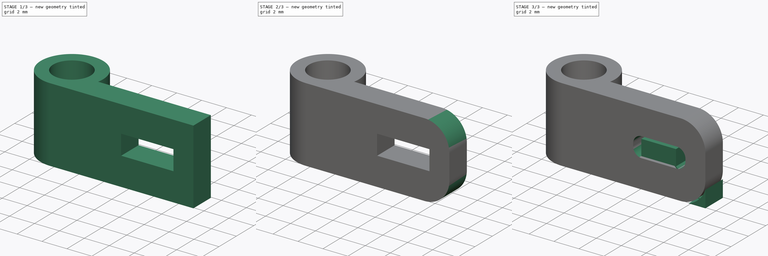
[diagram: build sequence overview — one tinted view per stage of 3, left to right]
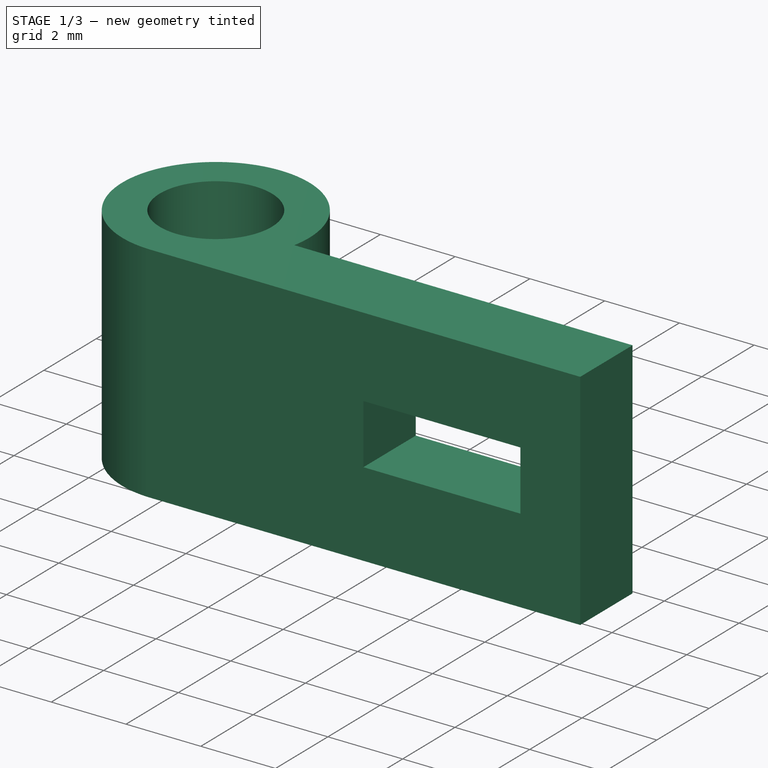
[diagram: stage 1 of 3 — iso view after this stage's code; geometry added in this stage tinted green]
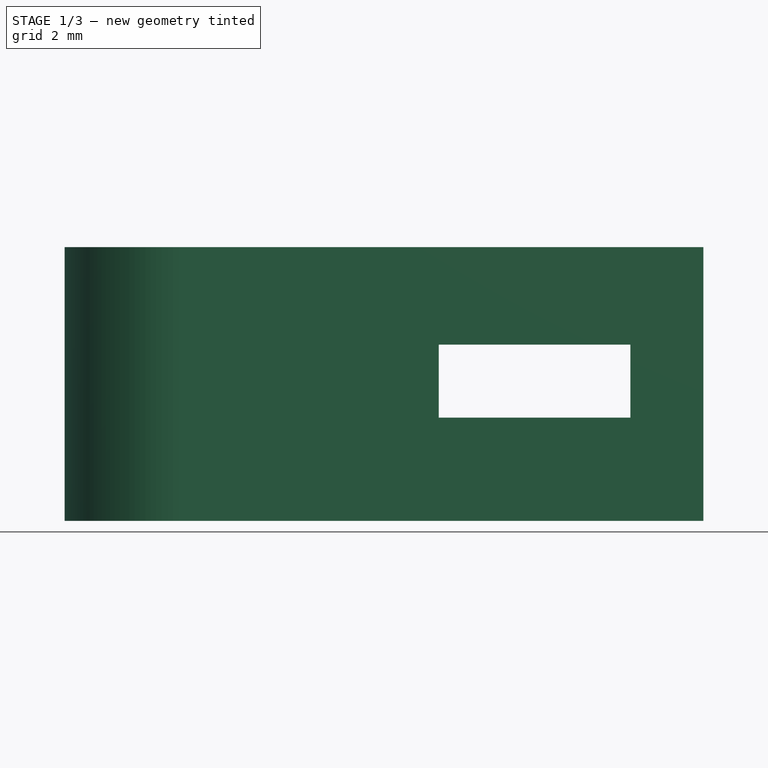
[diagram: stage 1 of 3 — front view after this stage's code; geometry added in this stage tinted green]
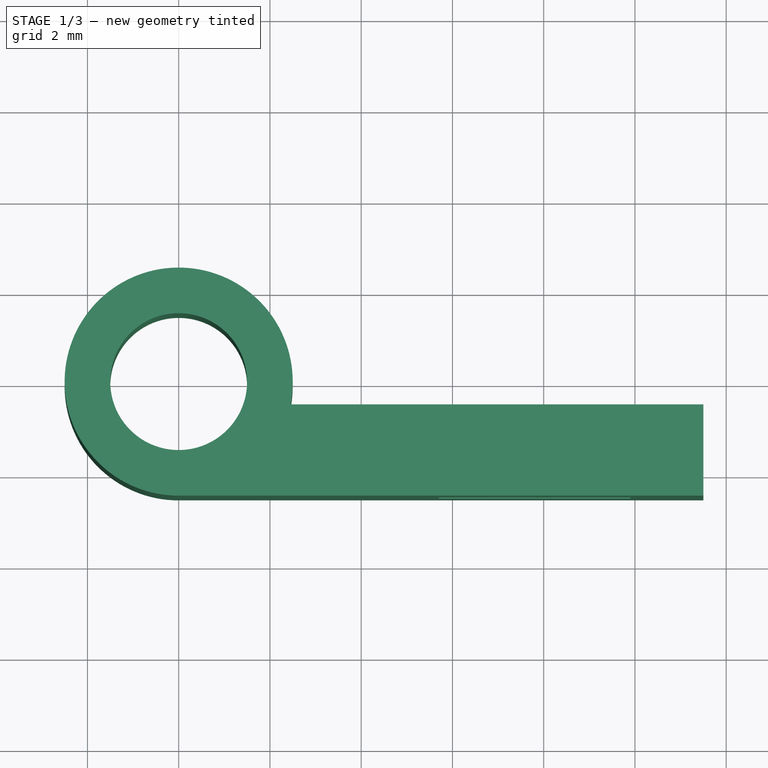
[diagram: stage 1 of 3 — top view after this stage's code; geometry added in this stage tinted green]
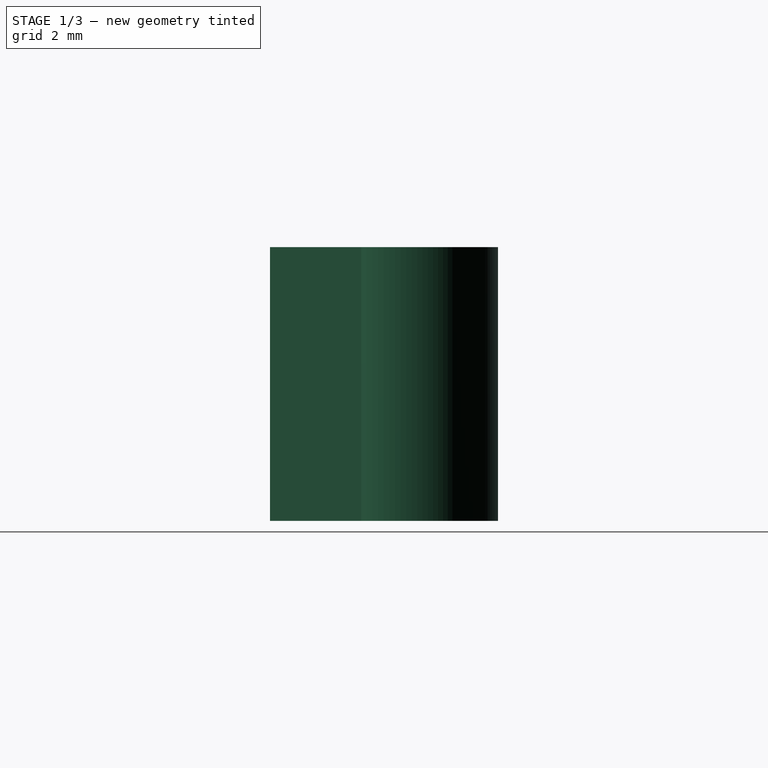
[diagram: stage 1 of 3 — right view after this stage's code; geometry added in this stage tinted green]
FCSTD DOCUMENT  (FreeCAD 0.19R24267 +99 (Git))
Label: 怪象摄像头固定tpu
License: All rights reserved
LicenseURL: http://en.wikipedia.org/wiki/All_rights_reserved
objects: Sketcher::SketchObject×3, PartDesign::Pad×2, PartDesign::Fillet×2, PartDesign::Pocket×1, PartDesign::Body×1
note: 14 computed .brp shape members not serialized (recipe doc carries the construction recipe); baked Part::Feature solids carry a one-line shape summary decoded from their .brp

FEATURE [Sketcher::SketchObject] Sketch
  FullyConstrained = false
  MapMode = 5
  Support = -> [XY_Plane]
  sketch-geometry (7):
    g0: ArcOfCircle CenterX=0 CenterY=0 CenterZ=0 NormalX=0 NormalY=0 NormalZ=1 AngleXU=0 Radius=2.5 StartAngle=6.08183 EndAngle=10.9956
    g1: Circle CenterX=0 CenterY=0 CenterZ=0 NormalX=0 NormalY=0 NormalZ=1 AngleXU=0 Radius=1.5
    g2: LineSegment StartX=-1.1e-15 StartY=-2.5 StartZ=0 EndX=11.5 EndY=-2.5 EndZ=0
    g3: LineSegment StartX=11.5 StartY=-2.5 StartZ=0 EndX=11.5 EndY=-0.5 EndZ=0
    g4: LineSegment StartX=11.5 StartY=-0.5 StartZ=0 EndX=2.44949 EndY=-0.5 EndZ=0
    g5: GeomPoint X=-2.5 Y=0 Z=0
    g6: GeomPoint X=-0.001984 Y=-1.5 Z=0
  constraints (17):
    c: Coincident(g0,g-1)
    c: Coincident(g1,g0)
    c: Diameter(g1) = 3
    c: Diameter(g0) = 5
    c: Coincident(g2,g3)
    c: Coincident(g3,g4)
    c: Horizontal(g2)
    c: Horizontal(g4)
    c: Vertical(g3)
    c: PointOnObject(g2,g-2)
    c: PointOnObject(g5,g0)
    c: PointOnObject(g5,g-1)
    c: Distance(g5,g3) = 14
    c: Coincident(g0,g4)
    c: Coincident(g0,g2)
    c: PointOnObject(g6,g1)
    c: Distance(g3) = 2
FEATURE [PartDesign::Pad] Pad
  Direction = (1,1,1)
  Length = 6
  Length2 = 100
  Profile = -> Sketch
  Type = 0
FEATURE [Sketcher::SketchObject] Sketch001
  ExternalGeometry = -> [Pad]
  FullyConstrained = false
  MapMode = 5
  Placement = pos=(0,-2.5,0) rot=(1,0,0;1.5708rad)
  Support = -> [Pad]
  sketch-geometry (4):
    g0: LineSegment StartX=5.7 StartY=3.86419 StartZ=0 EndX=9.9 EndY=3.86419 EndZ=0
    g1: LineSegment StartX=9.9 StartY=3.86419 StartZ=0 EndX=9.9 EndY=2.26419 EndZ=0
    g2: LineSegment StartX=9.9 StartY=2.26419 StartZ=0 EndX=5.7 EndY=2.26419 EndZ=0
    g3: LineSegment StartX=5.7 StartY=2.26419 StartZ=0 EndX=5.7 EndY=3.86419 EndZ=0
  constraints (11):
    c: Coincident(g0,g1)
    c: Coincident(g1,g2)
    c: Coincident(g2,g3)
    c: Coincident(g3,g0)
    c: Horizontal(g0)
    c: Horizontal(g2)
    c: Vertical(g1)
    c: Vertical(g3)
    c: Distance(g-3,g1) = 1.6
    c: Distance(g0,g0) = 4.2
    c: Distance(g1) = 1.6
FEATURE [PartDesign::Pocket] Pocket
  BaseFeature = -> Pad
  Length = 5
  Length2 = 100
  Profile = -> Sketch001
  Type = 0
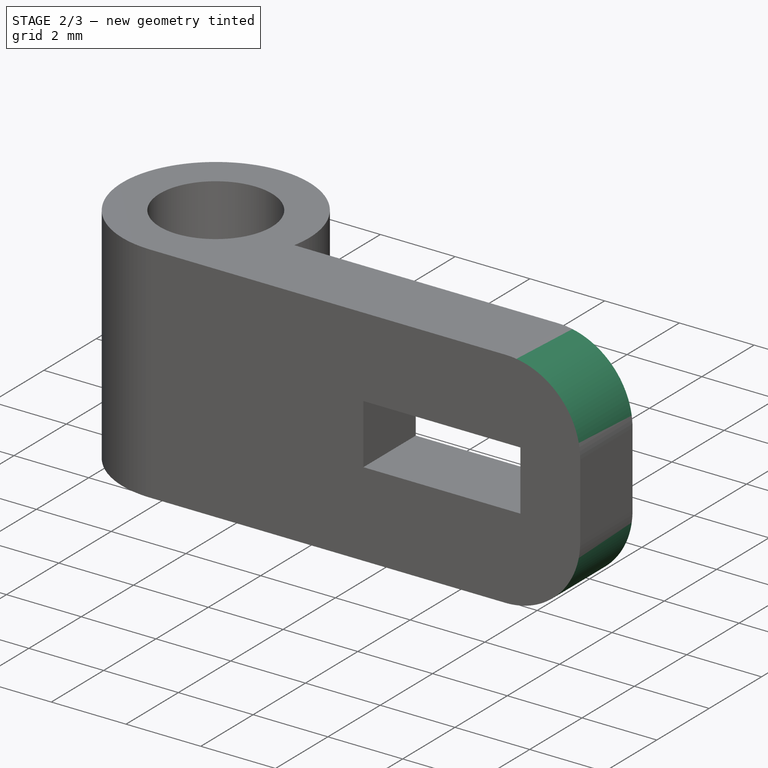
[diagram: stage 2 of 3 — iso view after this stage's code; geometry added in this stage tinted green]
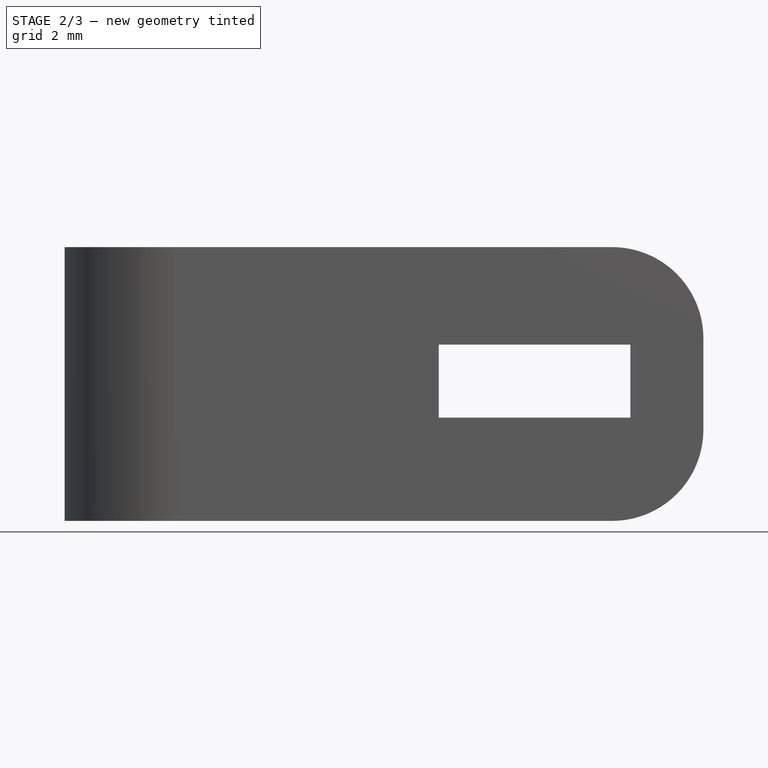
[diagram: stage 2 of 3 — front view after this stage's code; geometry added in this stage tinted green]
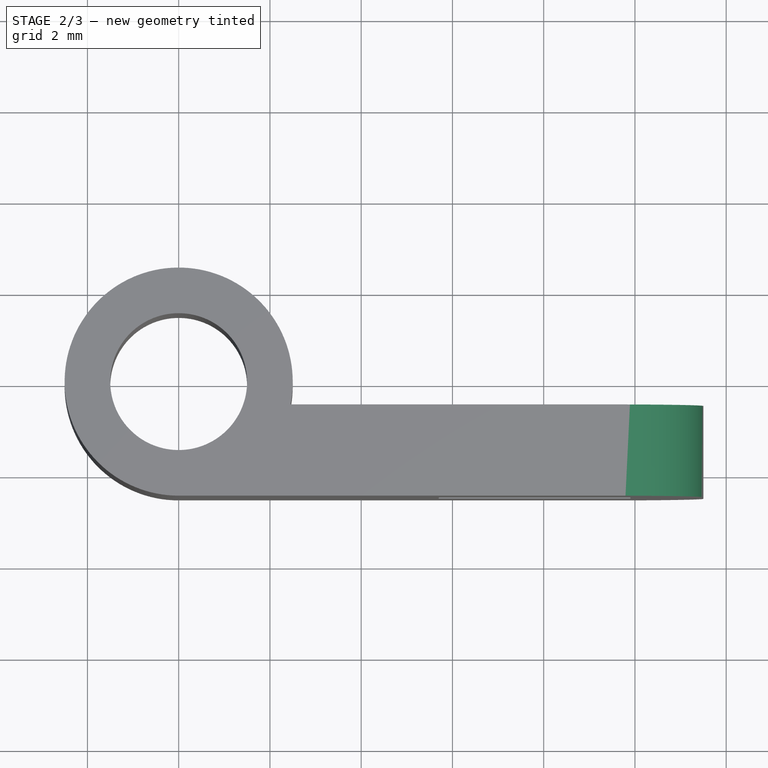
[diagram: stage 2 of 3 — top view after this stage's code; geometry added in this stage tinted green]
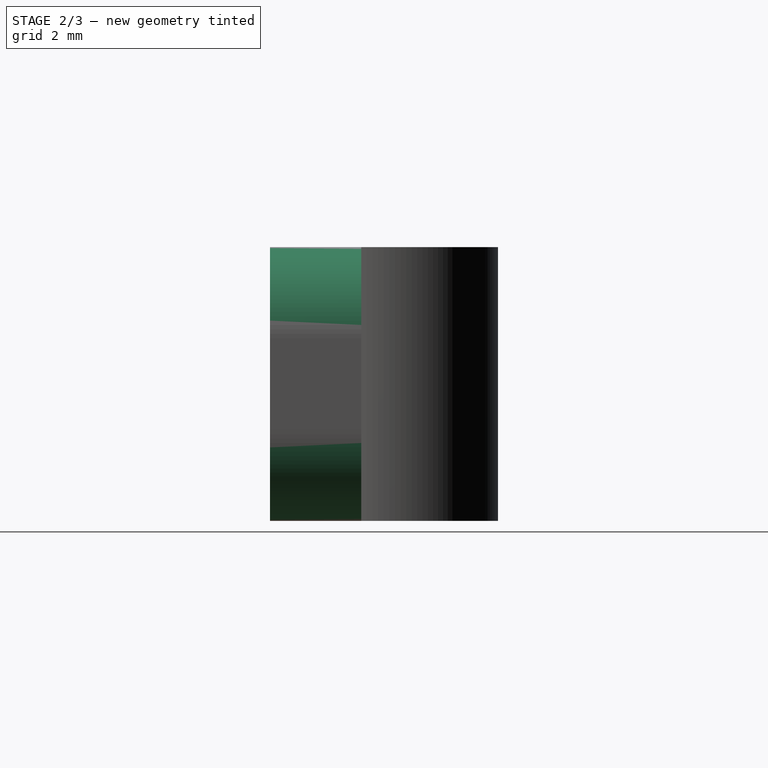
[diagram: stage 2 of 3 — right view after this stage's code; geometry added in this stage tinted green]
FEATURE [PartDesign::Fillet] Fillet
  Base = -> Pocket [Edge21,Edge19]
  BaseFeature = -> Pocket
  Radius = 2
  SupportTransform = false
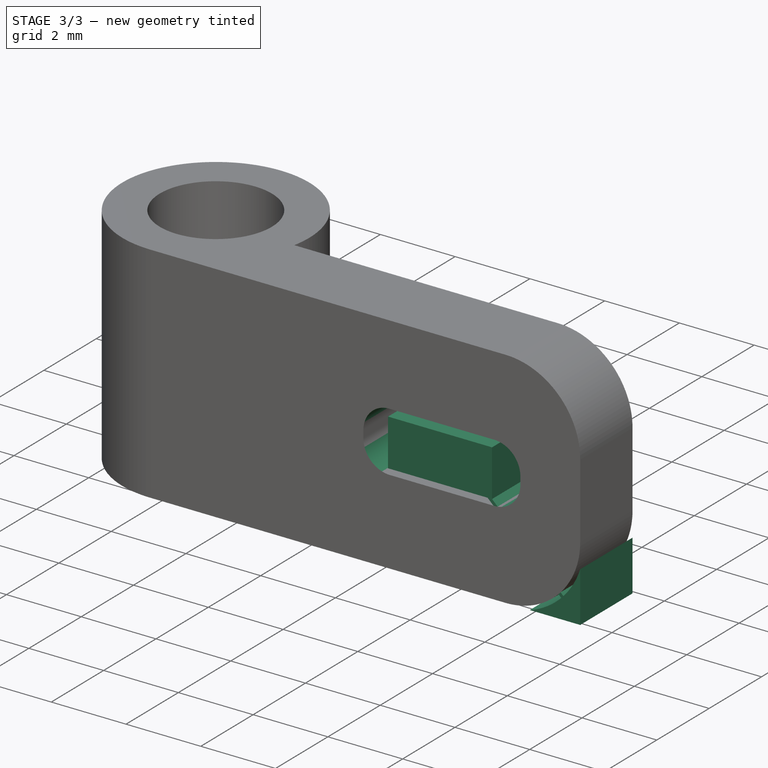
[diagram: stage 3 of 3 — iso view after this stage's code; geometry added in this stage tinted green]
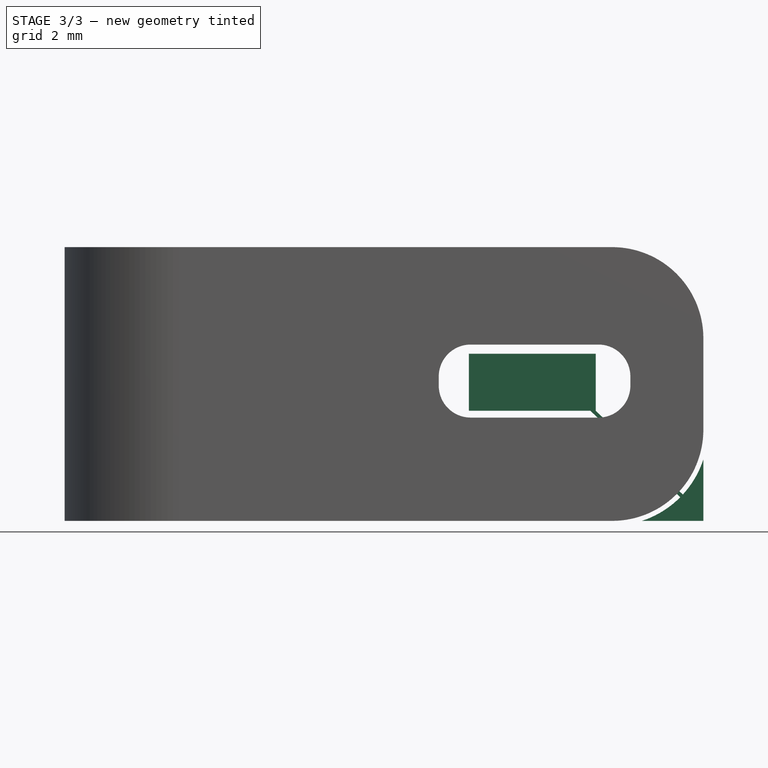
[diagram: stage 3 of 3 — front view after this stage's code; geometry added in this stage tinted green]
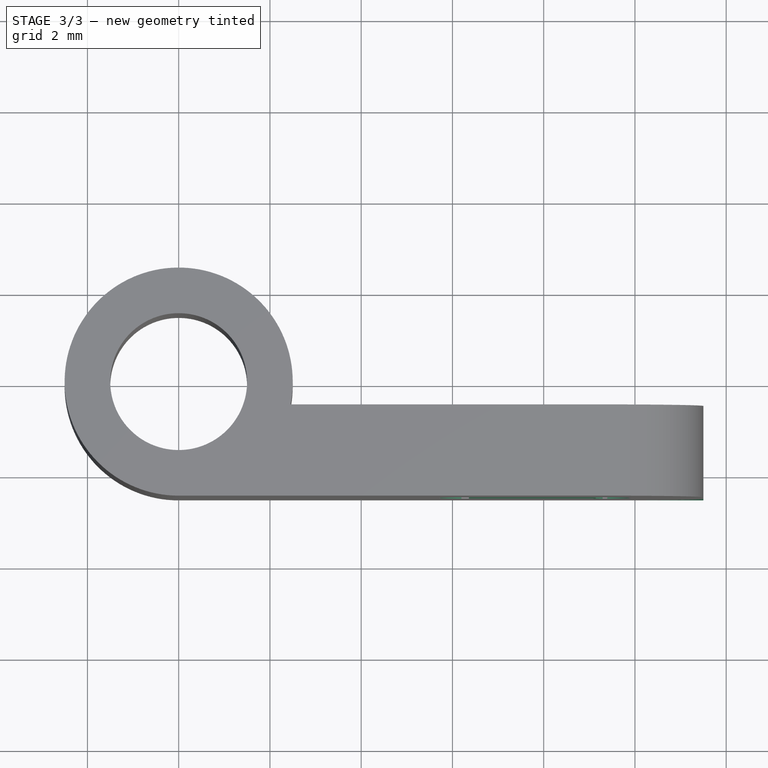
[diagram: stage 3 of 3 — top view after this stage's code; geometry added in this stage tinted green]
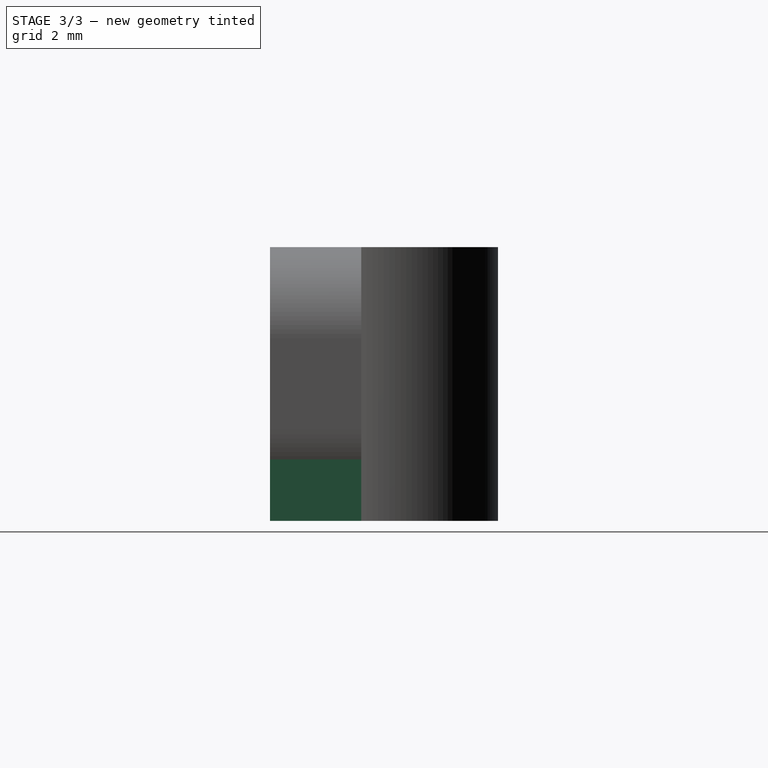
[diagram: stage 3 of 3 — right view after this stage's code; geometry added in this stage tinted green]
FEATURE [PartDesign::Fillet] Fillet001
  Base = -> Fillet [Edge26,Edge27,Edge31,Edge29]
  BaseFeature = -> Fillet
  Radius = 0.7
  SupportTransform = false
FEATURE [Sketcher::SketchObject] Sketch002
  ExternalGeometry = -> [Fillet001]
  FullyConstrained = false
  MapMode = 5
  Placement = pos=(0,-2.5,0) rot=(1,0,0;1.5708rad)
  Support = -> [Fillet001]
  sketch-geometry (10):
    g0: LineSegment StartX=6.35914 StartY=3.66419 StartZ=0 EndX=9.14113 EndY=3.66419 EndZ=0
    g1: LineSegment StartX=9.14113 StartY=3.66419 StartZ=0 EndX=9.14113 EndY=2.41419 EndZ=0
    g2: LineSegment StartX=9.02312 StartY=2.41419 StartZ=0 EndX=6.35914 EndY=2.41419 EndZ=0
    g3: LineSegment StartX=6.35914 StartY=2.41419 StartZ=0 EndX=6.35914 EndY=3.66419 EndZ=0
    g4: LineSegment StartX=11.5 StartY=1.34777 StartZ=0 EndX=11.5 EndY=0 EndZ=0
    g5: LineSegment StartX=11.5 StartY=0 StartZ=0 EndX=10.1522 EndY=0 EndZ=0
    g6: ArcOfCircle CenterX=9.5 CenterY=2 CenterZ=0 NormalX=0 NormalY=0 NormalZ=1 AngleXU=0 Radius=2.10366 StartAngle=5.02763 EndAngle=5.50182
    g7: LineSegment StartX=9.14113 StartY=2.41419 StartZ=0 EndX=11.05 EndY=0.577696 EndZ=0
    g8: LineSegment StartX=10.9935 StartY=0.518497 StartZ=0 EndX=9.02312 EndY=2.41419 EndZ=0
    g9: ArcOfCircle CenterX=9.5 CenterY=2 CenterZ=0 NormalX=0 NormalY=0 NormalZ=1 AngleXU=0 Radius=2.10366 StartAngle=5.54072 EndAngle=5.96795
  constraints (25):
    c: Coincident(g0,g1)
    c: Coincident(g2,g3)
    c: Coincident(g3,g0)
    c: Horizontal(g0)
    c: Horizontal(g2)
    c: Vertical(g1)
    c: Vertical(g3)
    c: Distance(g-4,g0) = 0.2
    c: Distance(g2,g-3) = 0.15
    c: Vertical(g4)
    c: Coincident(g4,g5)
    c: Horizontal(g5)
    c: PointOnObject(g5,g-7)
    c: PointOnObject(g4,g-6)
    c: Coincident(g6,g-5)
    c: Coincident(g9,g4)
    c: Coincident(g6,g5)
    c: Parallel(g7,g8)
    c: Distance(g8,g7) = 0.08182
    c: Coincident(g7,g1)
    c: Coincident(g2,g8)
    c: Equal(g6,g9)
    c: Coincident(g6,g8)
    c: Coincident(g9,g7)
    c: Coincident(g6,g9)
FEATURE [PartDesign::Pad] Pad001
  BaseFeature = -> Fillet001
  Direction = (1,1,1)
  Length = 2
  Length2 = 100
  Profile = -> Sketch002
  Reversed = true
  Type = 0
FEATURE [PartDesign::Body] Body
  Group = -> [Sketch,Pad,Sketch001,Pocket,Fillet,Fillet001,Sketch002,Pad001]
  Origin = -> Origin
  Tip = -> Pad001
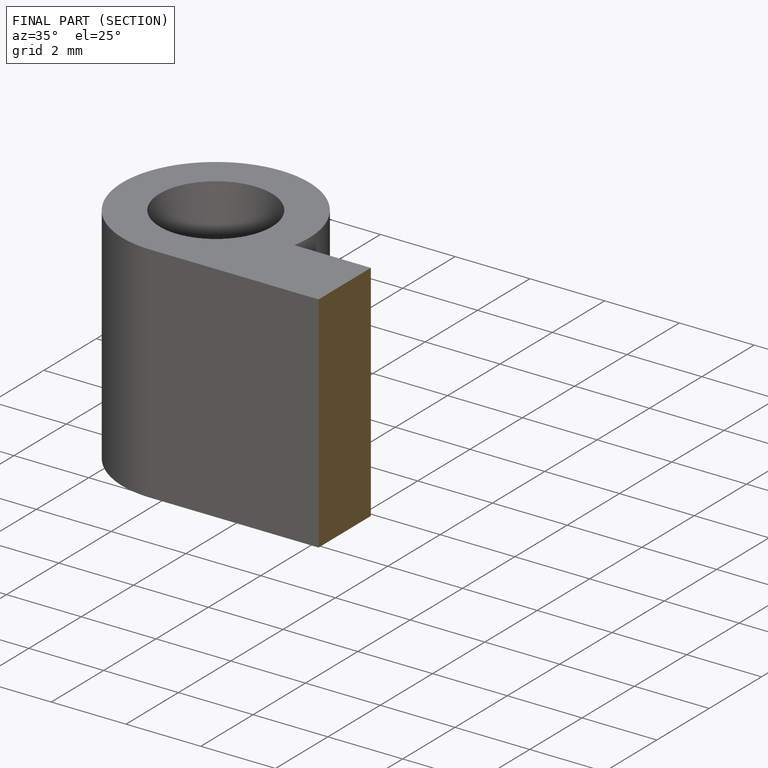
[diagram: finished part — half-section view (interior)]
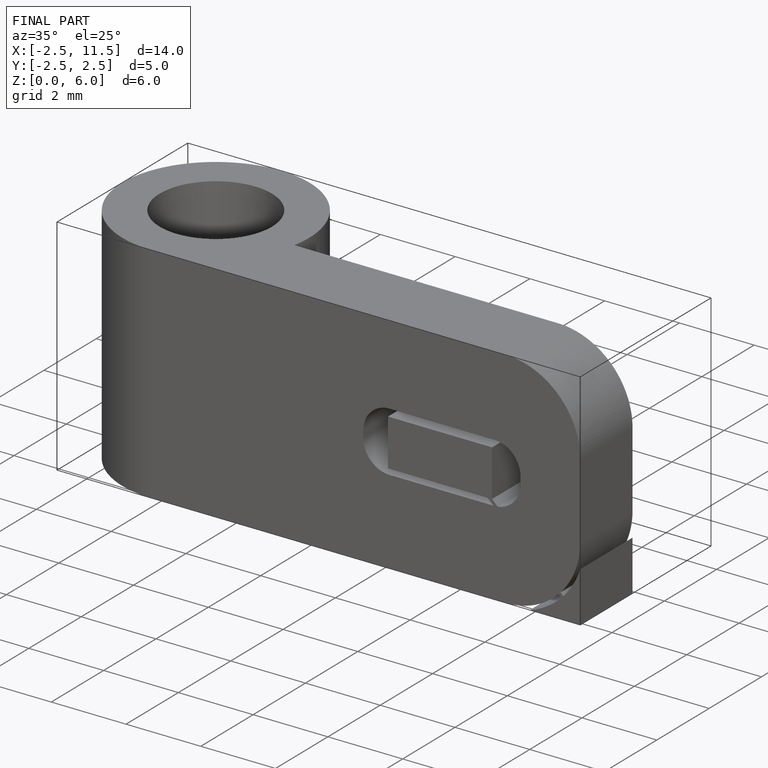
[diagram: finished part — iso view with bounding-box wireframe]
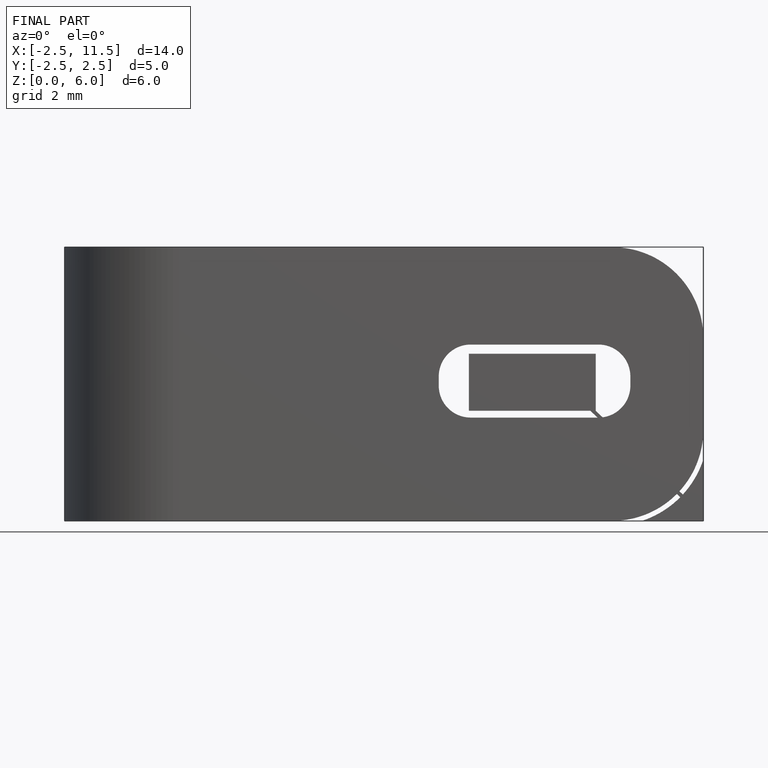
[diagram: finished part — front view with bounding-box wireframe]
